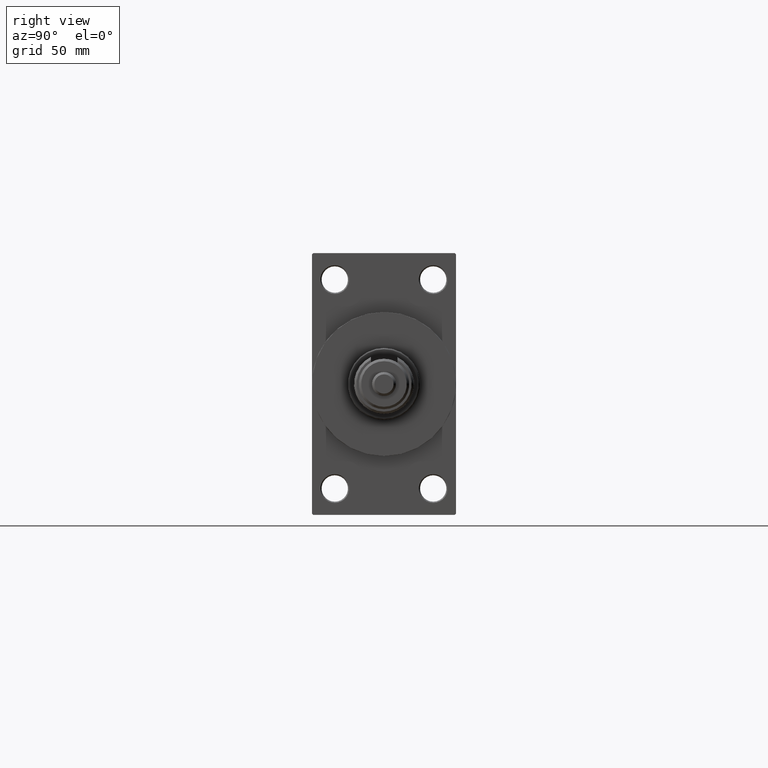
[diagram: clean part render]
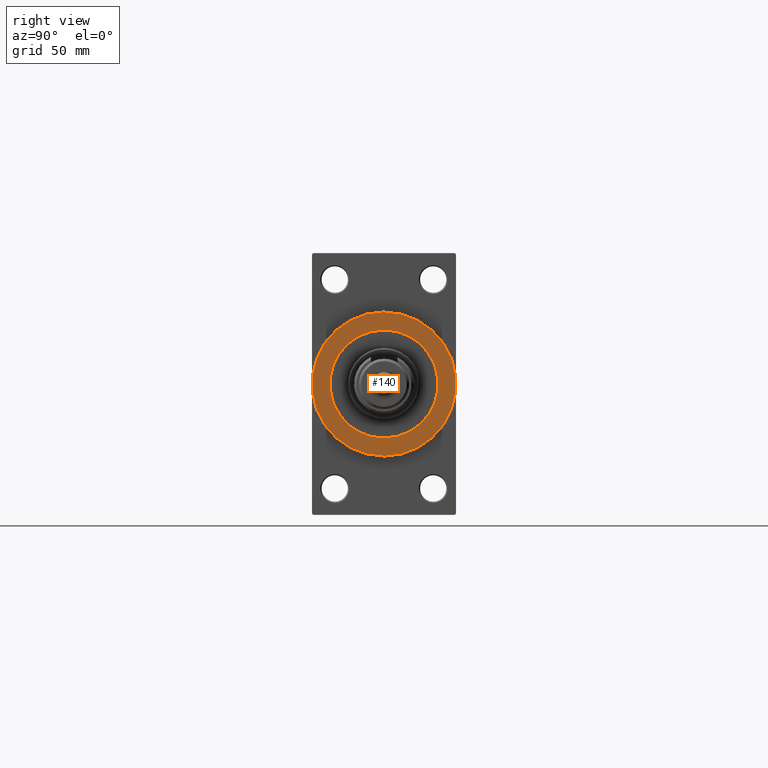
[diagram: same view with one face highlighted and labeled with its STEP entity id]
A machine part, right view. The second image highlights one B-rep face of the part: STEP entity #140.
In plain terms, the highlighted planar face has unit normal (1, 0, 0).
Its self-contained STEP definition (entity closure, byte-faithful):
#140 = ADVANCED_FACE ( 'NONE', ( #19751, #34664 ), #505, .T. ) ;
#279 = CIRCLE ( 'NONE', #40662, 30.00000000000000000 ) ;
#505 = PLANE ( 'NONE',  #13533 ) ;
#1018 = AXIS2_PLACEMENT_3D ( 'NONE', #15043, #12270, #19097 ) ;
#1168 = DIRECTION ( 'NONE',  ( 0.000000000000000000, 0.000000000000000000, -1.000000000000000000 ) ) ;
#1239 = EDGE_CURVE ( 'NONE', #43751, #20108, #45866, .T. ) ;
#1387 = VERTEX_POINT ( 'NONE', #24554 ) ;
#3486 = EDGE_LOOP ( 'NONE', ( #21057, #36101 ) ) ;
#6277 = ORIENTED_EDGE ( 'NONE', *, *, #1239, .F. ) ;
#7518 = EDGE_LOOP ( 'NONE', ( #9482, #6277 ) ) ;
#7596 = CARTESIAN_POINT ( 'NONE',  ( 188.0000000000000000, 0.000000000000000000, 0.000000000000000000 ) ) ;
#9482 = ORIENTED_EDGE ( 'NONE', *, *, #37014, .F. ) ;
#12224 = DIRECTION ( 'NONE',  ( 1.000000000000000000, 0.000000000000000000, 0.000000000000000000 ) ) ;
#12270 = DIRECTION ( 'NONE',  ( 1.000000000000000000, 0.000000000000000000, 0.000000000000000000 ) ) ;
#13042 = CARTESIAN_POINT ( 'NONE',  ( 188.0000000000000000, 0.000000000000000000, -22.50000000000000355 ) ) ;
#13316 = DIRECTION ( 'NONE',  ( 1.000000000000000000, 0.000000000000000000, 0.000000000000000000 ) ) ;
#13533 = AXIS2_PLACEMENT_3D ( 'NONE', #7596, #49845, #31119 ) ;
#13960 = CIRCLE ( 'NONE', #1018, 30.00000000000000000 ) ;
#15043 = CARTESIAN_POINT ( 'NONE',  ( 188.0000000000000000, 0.000000000000000000, 0.000000000000000000 ) ) ;
#15674 = EDGE_CURVE ( 'NONE', #1387, #31787, #13960, .T. ) ;
#16768 = CIRCLE ( 'NONE', #48280, 22.50000000000000355 ) ;
#17466 = EDGE_CURVE ( 'NONE', #31787, #1387, #279, .T. ) ;
#19097 = DIRECTION ( 'NONE',  ( 0.000000000000000000, 0.000000000000000000, -1.000000000000000000 ) ) ;
#19751 = FACE_BOUND ( 'NONE', #7518, .T. ) ;
#20108 = VERTEX_POINT ( 'NONE', #13042 ) ;
#21057 = ORIENTED_EDGE ( 'NONE', *, *, #17466, .T. ) ;
#23042 = DIRECTION ( 'NONE',  ( 1.000000000000000000, 0.000000000000000000, 0.000000000000000000 ) ) ;
#23556 = CARTESIAN_POINT ( 'NONE',  ( 188.0000000000000000, 0.000000000000000000, 0.000000000000000000 ) ) ;
#24071 = AXIS2_PLACEMENT_3D ( 'NONE', #23556, #23042, #34931 ) ;
#24554 = CARTESIAN_POINT ( 'NONE',  ( 188.0000000000000000, 3.673940397442059178E-15, -30.00000000000000000 ) ) ;
#25666 = CARTESIAN_POINT ( 'NONE',  ( 188.0000000000000000, 2.755455298081545172E-15, 22.50000000000000355 ) ) ;
#26883 = CARTESIAN_POINT ( 'NONE',  ( 188.0000000000000000, 0.000000000000000000, 0.000000000000000000 ) ) ;
#31119 = DIRECTION ( 'NONE',  ( 0.000000000000000000, 0.000000000000000000, -1.000000000000000000 ) ) ;
#31787 = VERTEX_POINT ( 'NONE', #32972 ) ;
#32972 = CARTESIAN_POINT ( 'NONE',  ( 188.0000000000000000, 0.000000000000000000, 30.00000000000000000 ) ) ;
#34664 = FACE_OUTER_BOUND ( 'NONE', #3486, .T. ) ;
#34931 = DIRECTION ( 'NONE',  ( 0.000000000000000000, 0.000000000000000000, -1.000000000000000000 ) ) ;
#36101 = ORIENTED_EDGE ( 'NONE', *, *, #15674, .T. ) ;
#37014 = EDGE_CURVE ( 'NONE', #20108, #43751, #16768, .T. ) ;
#38772 = DIRECTION ( 'NONE',  ( 0.000000000000000000, 0.000000000000000000, -1.000000000000000000 ) ) ;
#40662 = AXIS2_PLACEMENT_3D ( 'NONE', #26883, #12224, #38772 ) ;
#43751 = VERTEX_POINT ( 'NONE', #25666 ) ;
#45866 = CIRCLE ( 'NONE', #24071, 22.50000000000000355 ) ;
#47466 = CARTESIAN_POINT ( 'NONE',  ( 188.0000000000000000, 0.000000000000000000, 0.000000000000000000 ) ) ;
#48280 = AXIS2_PLACEMENT_3D ( 'NONE', #47466, #13316, #1168 ) ;
#49845 = DIRECTION ( 'NONE',  ( 1.000000000000000000, 0.000000000000000000, 0.000000000000000000 ) ) ;